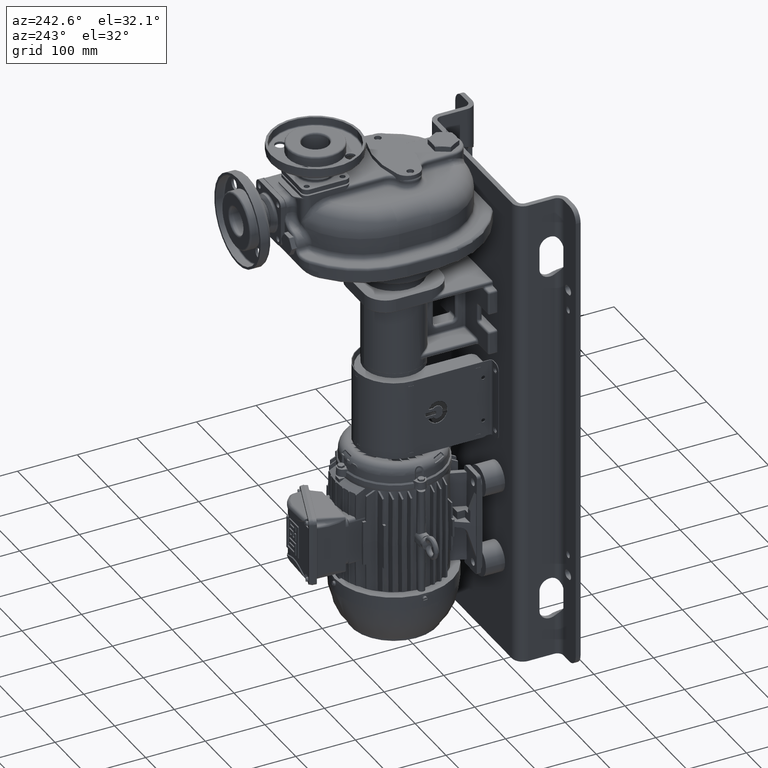
[diagram: clean part render]
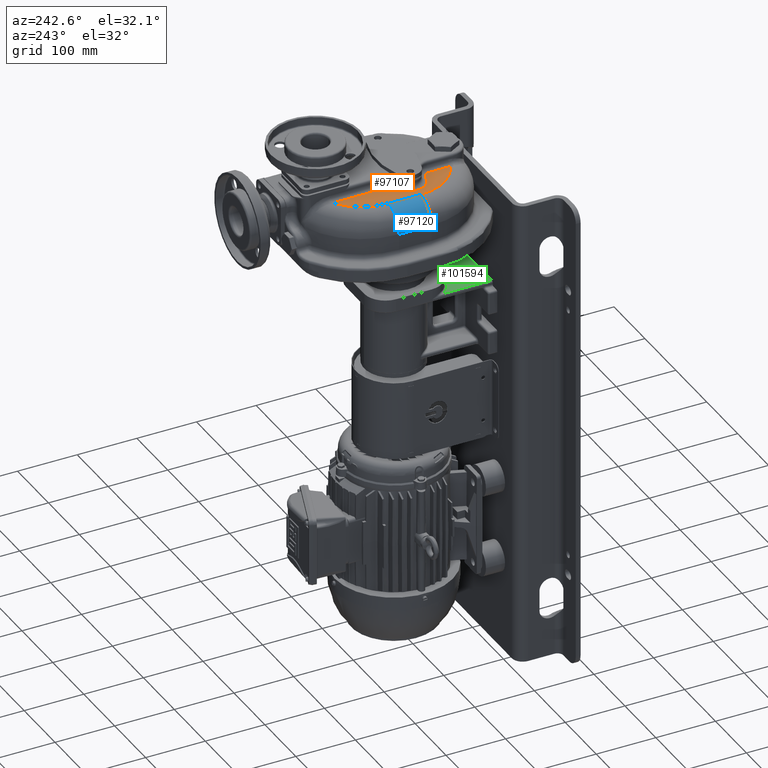
[diagram: same view with three faces highlighted in distinct colors, each labeled with its STEP entity id]
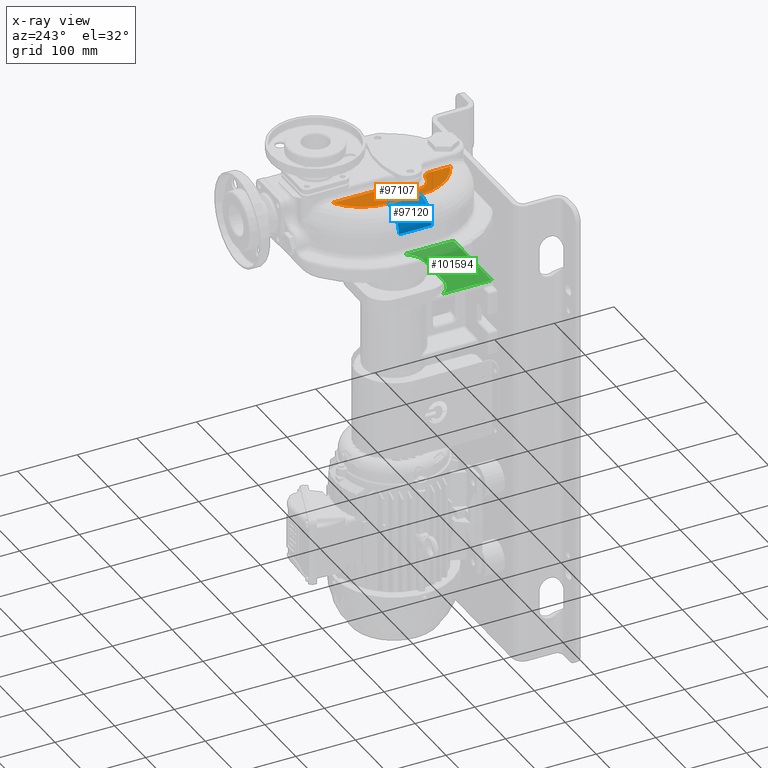
[diagram: x-ray of the same camera — body ghosted, the three highlighted faces saturated]
A machine part, auxiliary view with three faces highlighted in distinct colors.
The next image is the same camera in x-ray (body ghosted, the three faces saturated) — at least one of them is partly hidden behind the body in this view.
Their STEP definitions:

[orange] entity #97107 — the highlighted planar face has unit normal (0, 0, 1).
#31280=CARTESIAN_POINT('',(4.5E0,1.275E2,2.245E2));
#31281=DIRECTION('',(0.E0,0.E0,1.E0));
#31282=DIRECTION('',(-1.E0,0.E0,0.E0));
#31283=AXIS2_PLACEMENT_3D('',#31280,#31281,#31282);
#31285=DIRECTION('',(0.E0,-1.E0,0.E0));
#31286=VECTOR('',#31285,5.45E1);
#31287=CARTESIAN_POINT('',(-7.8E1,1.82E2,2.245E2));
#31288=LINE('',#31287,#31286);
#31289=CARTESIAN_POINT('',(9.E0,1.82E2,2.245E2));
#31290=DIRECTION('',(0.E0,0.E0,1.E0));
#31291=DIRECTION('',(-5.517241379280E-1,8.340266636191E-1,0.E0));
#31292=AXIS2_PLACEMENT_3D('',#31289,#31290,#31291);
#31294=DIRECTION('',(0.E0,1.E0,0.E0));
#31295=VECTOR('',#31294,9.009033174444E1);
#31296=CARTESIAN_POINT('',(-3.9E1,1.644699879904E2,2.245E2));
#31297=LINE('',#31296,#31295);
#31298=CARTESIAN_POINT('',(-5.1E1,1.644699879904E2,2.245E2));
#31299=DIRECTION('',(0.E0,0.E0,1.E0));
#31300=DIRECTION('',(3.5E-1,-9.367496997598E-1,0.E0));
#31301=AXIS2_PLACEMENT_3D('',#31298,#31299,#31300);
#31303=CARTESIAN_POINT('',(-3.7E1,1.27E2,2.245E2));
#31304=DIRECTION('',(0.E0,0.E0,-1.E0));
#31305=DIRECTION('',(-1.E-1,-9.949874371066E-1,0.E0));
#31306=AXIS2_PLACEMENT_3D('',#31303,#31304,#31305);
#31308=CARTESIAN_POINT('',(-4.1E1,8.720050251574E1,2.245E2));
#31309=DIRECTION('',(0.E0,0.E0,1.E0));
#31310=DIRECTION('',(1.E0,0.E0,0.E0));
#31311=AXIS2_PLACEMENT_3D('',#31308,#31309,#31310);
#31313=DIRECTION('',(0.E0,1.E0,0.E0));
#31314=VECTOR('',#31313,3.509280981577E1);
#31315=CARTESIAN_POINT('',(-2.9E1,5.210769269996E1,2.245E2));
#31316=LINE('',#31315,#31314);
#63004=CARTESIAN_POINT('',(-7.8E1,1.82E2,2.245E2));
#63005=CARTESIAN_POINT('',(-7.8E1,1.275E2,2.245E2));
#63006=VERTEX_POINT('',#63004);
#63007=VERTEX_POINT('',#63005);
#63014=CARTESIAN_POINT('',(-2.899999999977E1,5.210769270002E1,2.245E2));
#63015=VERTEX_POINT('',#63014);
#63016=CARTESIAN_POINT('',(-3.899999999974E1,2.545603197349E2,2.245E2));
#63017=VERTEX_POINT('',#63016);
#63106=CARTESIAN_POINT('',(-2.9E1,8.720050251574E1,2.245E2));
#63107=VERTEX_POINT('',#63106);
#63110=CARTESIAN_POINT('',(-3.98E1,9.914035176101E1,2.245E2));
#63111=VERTEX_POINT('',#63110);
#63114=CARTESIAN_POINT('',(-4.68E1,1.532289915933E2,2.245E2));
#63115=VERTEX_POINT('',#63114);
#63116=CARTESIAN_POINT('',(-3.9E1,1.644699879904E2,2.245E2));
#63117=VERTEX_POINT('',#63116);
#97085=CARTESIAN_POINT('',(7.8E1,3.14E2,2.245E2));
#97086=DIRECTION('',(0.E0,0.E0,1.E0));
#97087=DIRECTION('',(-1.E0,0.E0,0.E0));
#97088=AXIS2_PLACEMENT_3D('',#97085,#97086,#97087);
#97089=PLANE('',#97088);
#97090=ORIENTED_EDGE('',*,*,#97073,.F.);
#97092=ORIENTED_EDGE('',*,*,#97091,.F.);
#97094=ORIENTED_EDGE('',*,*,#97093,.F.);
#97096=ORIENTED_EDGE('',*,*,#97095,.F.);
#97098=ORIENTED_EDGE('',*,*,#97097,.F.);
#97100=ORIENTED_EDGE('',*,*,#97099,.F.);
#97102=ORIENTED_EDGE('',*,*,#97101,.F.);
#97104=ORIENTED_EDGE('',*,*,#97103,.F.);
#97105=EDGE_LOOP('',(#97090,#97092,#97094,#97096,#97098,#97100,#97102,#97104));
#97106=FACE_OUTER_BOUND('',#97105,.F.);
#97107=ADVANCED_FACE('',(#97106),#97089,.T.);
#31284=CIRCLE('',#31283,8.25E1);
#31293=CIRCLE('',#31292,8.7E1);
#31302=CIRCLE('',#31301,1.2E1);
#31307=CIRCLE('',#31306,2.8E1);
#31312=CIRCLE('',#31311,1.2E1);
#97073=EDGE_CURVE('',#63007,#63015,#31284,.T.);
#97091=EDGE_CURVE('',#63006,#63007,#31288,.T.);
#97093=EDGE_CURVE('',#63017,#63006,#31293,.T.);
#97095=EDGE_CURVE('',#63117,#63017,#31297,.T.);
#97097=EDGE_CURVE('',#63115,#63117,#31302,.T.);
#97099=EDGE_CURVE('',#63111,#63115,#31307,.T.);
#97101=EDGE_CURVE('',#63107,#63111,#31312,.T.);
#97103=EDGE_CURVE('',#63015,#63107,#31316,.T.);

[blue] entity #97120 — the highlighted cylindrical surface (edge-blend (fillet) strip) has radius 35 mm, axis along (0, -1, 0).
#30289=DIRECTION('',(0.E0,-1.E0,0.E0));
#30290=VECTOR('',#30289,5.45E1);
#30291=CARTESIAN_POINT('',(-1.13E2,1.82E2,1.895E2));
#30292=LINE('',#30291,#30290);
#31275=CARTESIAN_POINT('',(-7.8E1,1.275E2,1.895E2));
#31276=DIRECTION('',(0.E0,-1.E0,0.E0));
#31277=DIRECTION('',(0.E0,0.E0,1.E0));
#31278=AXIS2_PLACEMENT_3D('',#31275,#31276,#31277);
#31285=DIRECTION('',(0.E0,-1.E0,0.E0));
#31286=VECTOR('',#31285,5.45E1);
#31287=CARTESIAN_POINT('',(-7.8E1,1.82E2,2.245E2));
#31288=LINE('',#31287,#31286);
#31317=CARTESIAN_POINT('',(-7.8E1,1.82E2,1.895E2));
#31318=DIRECTION('',(0.E0,-1.E0,0.E0));
#31319=DIRECTION('',(0.E0,0.E0,1.E0));
#31320=AXIS2_PLACEMENT_3D('',#31317,#31318,#31319);
#63002=CARTESIAN_POINT('',(-1.13E2,1.275E2,1.895E2));
#63003=VERTEX_POINT('',#63002);
#63004=CARTESIAN_POINT('',(-7.8E1,1.82E2,2.245E2));
#63005=CARTESIAN_POINT('',(-7.8E1,1.275E2,2.245E2));
#63006=VERTEX_POINT('',#63004);
#63007=VERTEX_POINT('',#63005);
#63008=CARTESIAN_POINT('',(-1.13E2,1.82E2,1.895E2));
#63009=VERTEX_POINT('',#63008);
#97108=CARTESIAN_POINT('',(-7.8E1,1.820218436E2,1.895E2));
#97109=DIRECTION('',(0.E0,-1.E0,0.E0));
#97110=DIRECTION('',(0.E0,0.E0,1.E0));
#97111=AXIS2_PLACEMENT_3D('',#97108,#97109,#97110);
#97112=CYLINDRICAL_SURFACE('',#97111,3.5E1);
#97113=ORIENTED_EDGE('',*,*,#97091,.T.);
#97114=ORIENTED_EDGE('',*,*,#97080,.T.);
#97115=ORIENTED_EDGE('',*,*,#95629,.F.);
#97117=ORIENTED_EDGE('',*,*,#97116,.F.);
#97118=EDGE_LOOP('',(#97113,#97114,#97115,#97117));
#97119=FACE_OUTER_BOUND('',#97118,.F.);
#97120=ADVANCED_FACE('',(#97119),#97112,.T.);
#31279=CIRCLE('',#31278,3.5E1);
#31321=CIRCLE('',#31320,3.5E1);
#95629=EDGE_CURVE('',#63009,#63003,#30292,.T.);
#97080=EDGE_CURVE('',#63007,#63003,#31279,.T.);
#97091=EDGE_CURVE('',#63006,#63007,#31288,.T.);
#97116=EDGE_CURVE('',#63006,#63009,#31321,.T.);

[green] entity #101594 — the highlighted planar face has unit normal (0, 0, -1).
#35017=DIRECTION('',(-1.E0,0.E0,0.E0));
#35018=VECTOR('',#35017,1.24E2);
#35019=CARTESIAN_POINT('',(6.2E1,0.E0,2.8E1));
#35020=LINE('',#35019,#35018);
#35021=DIRECTION('',(0.E0,-1.E0,0.E0));
#35022=VECTOR('',#35021,8.150609846808E1);
#35023=CARTESIAN_POINT('',(-6.2E1,8.150609846808E1,2.8E1));
#35024=LINE('',#35023,#35022);
#35025=CARTESIAN_POINT('',(-3.E1,1.02E2,2.8E1));
#35026=DIRECTION('',(0.E0,0.E0,-1.E0));
#35027=DIRECTION('',(0.E0,-1.E0,0.E0));
#35028=AXIS2_PLACEMENT_3D('',#35025,#35026,#35027);
#35030=DIRECTION('',(-1.E0,0.E0,0.E0));
#35031=VECTOR('',#35030,6.E1);
#35032=CARTESIAN_POINT('',(3.E1,6.4E1,2.8E1));
#35033=LINE('',#35032,#35031);
#35034=CARTESIAN_POINT('',(3.E1,1.02E2,2.8E1));
#35035=DIRECTION('',(0.E0,0.E0,-1.E0));
#35036=DIRECTION('',(8.421052631579E-1,-5.393131982084E-1,0.E0));
#35037=AXIS2_PLACEMENT_3D('',#35034,#35035,#35036);
#35039=DIRECTION('',(0.E0,1.E0,0.E0));
#35040=VECTOR('',#35039,8.150609846808E1);
#35041=CARTESIAN_POINT('',(6.2E1,0.E0,2.8E1));
#35042=LINE('',#35041,#35040);
#62871=CARTESIAN_POINT('',(-3.E1,6.4E1,2.8E1));
#62872=CARTESIAN_POINT('',(-6.2E1,8.150609846808E1,2.8E1));
#62873=VERTEX_POINT('',#62871);
#62874=VERTEX_POINT('',#62872);
#62877=CARTESIAN_POINT('',(3.E1,6.4E1,2.8E1));
#62878=VERTEX_POINT('',#62877);
#62881=CARTESIAN_POINT('',(6.2E1,8.150609846808E1,2.8E1));
#62882=VERTEX_POINT('',#62881);
#63953=CARTESIAN_POINT('',(6.2E1,0.E0,2.8E1));
#63954=CARTESIAN_POINT('',(-6.2E1,0.E0,2.8E1));
#63955=VERTEX_POINT('',#63953);
#63956=VERTEX_POINT('',#63954);
#101577=CARTESIAN_POINT('',(0.E0,1.32E2,2.8E1));
#101578=DIRECTION('',(0.E0,0.E0,-1.E0));
#101579=DIRECTION('',(-1.E0,0.E0,0.E0));
#101580=AXIS2_PLACEMENT_3D('',#101577,#101578,#101579);
#101581=PLANE('',#101580);
#101582=ORIENTED_EDGE('',*,*,#78430,.T.);
#101584=ORIENTED_EDGE('',*,*,#101583,.F.);
#101586=ORIENTED_EDGE('',*,*,#101585,.F.);
#101588=ORIENTED_EDGE('',*,*,#101587,.F.);
#101590=ORIENTED_EDGE('',*,*,#101589,.F.);
#101591=ORIENTED_EDGE('',*,*,#101569,.F.);
#101592=EDGE_LOOP('',(#101582,#101584,#101586,#101588,#101590,#101591));
#101593=FACE_OUTER_BOUND('',#101592,.F.);
#101594=ADVANCED_FACE('',(#101593),#101581,.F.);
#35029=CIRCLE('',#35028,3.8E1);
#35038=CIRCLE('',#35037,3.8E1);
#78430=EDGE_CURVE('',#63955,#63956,#35020,.T.);
#101569=EDGE_CURVE('',#63955,#62882,#35042,.T.);
#101583=EDGE_CURVE('',#62874,#63956,#35024,.T.);
#101585=EDGE_CURVE('',#62873,#62874,#35029,.T.);
#101587=EDGE_CURVE('',#62878,#62873,#35033,.T.);
#101589=EDGE_CURVE('',#62882,#62878,#35038,.T.);